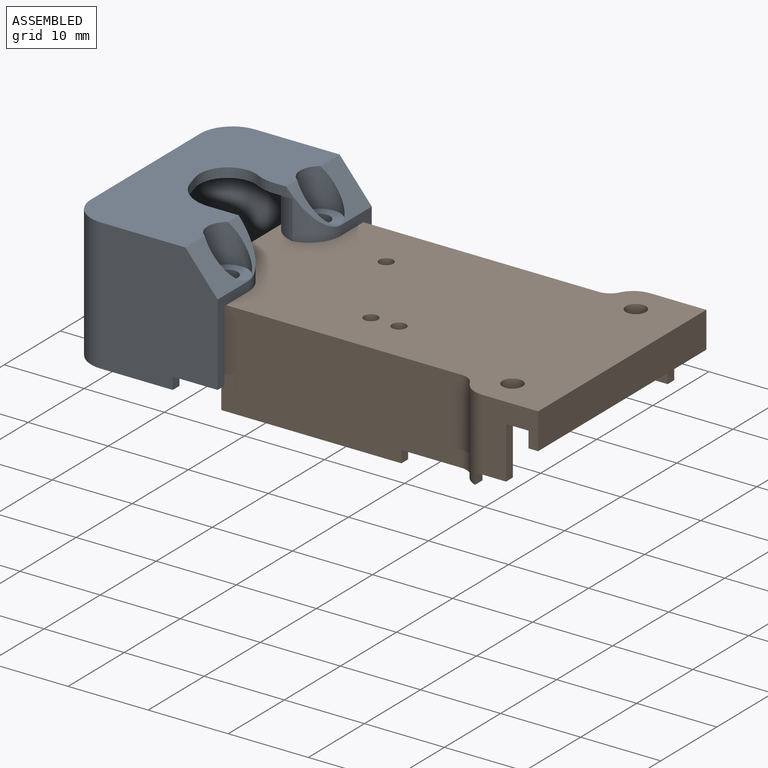
[diagram: assembled view]
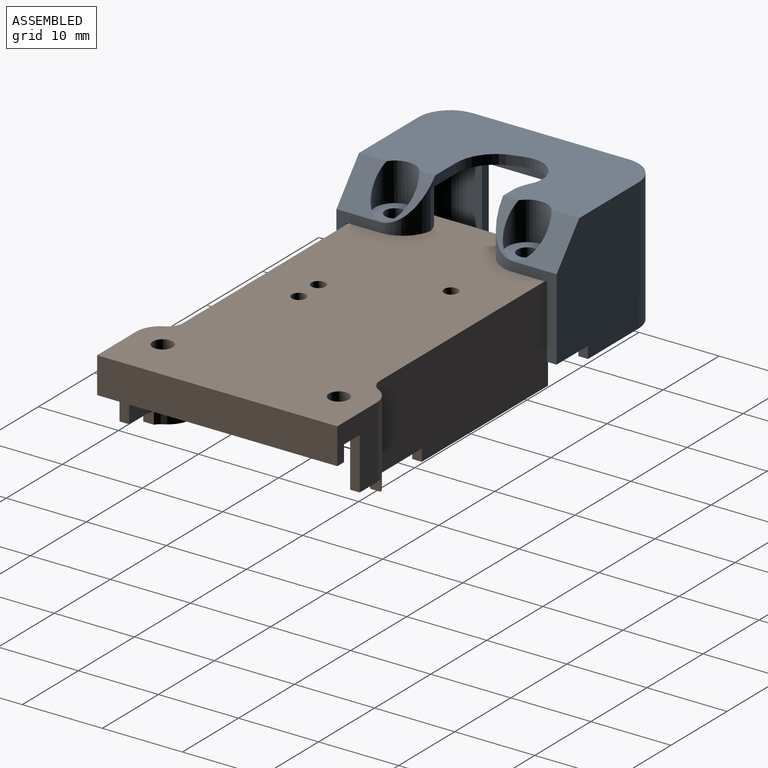
[diagram: assembled view, second angle]
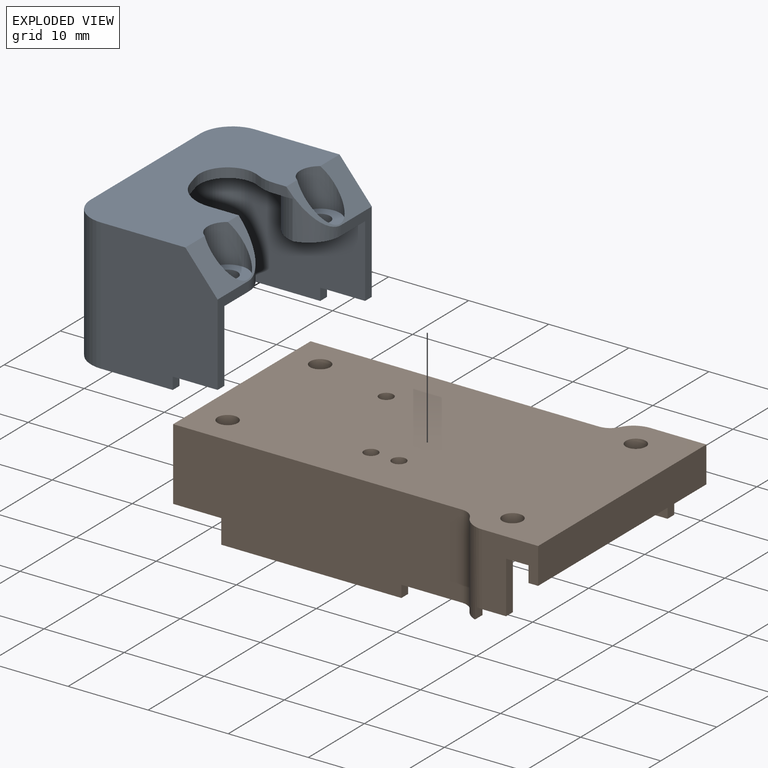
[diagram: exploded view]
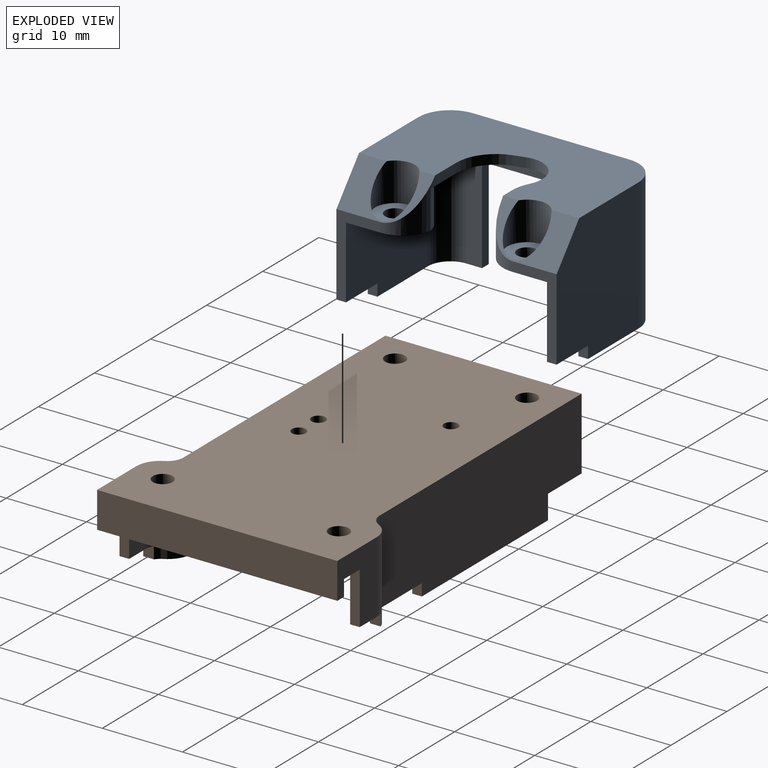
[diagram: exploded view, second angle]
ASSEMBLY  parts=2 mates=2
PART A: 45 faces, bbox 18.6x27.5x16.5 mm
  f0: plane 13x6mm, normal (0,0,1), area 19.6mm2, adj f2,f3,f14,f16,f18,f20,f25,f44
  f1: plane 13x11mm, normal (0,0,1), area 25.6mm2, adj f2,f3,f15,f17,f19,f21,f26,f41
  f2: plane 19.5x16.5mm, normal (-1,0,0), area 195.7mm2, adj f0,f1,f5,f16,f17,f24,f25,f26
  f3: plane 19.5x15.3mm, normal (1,0,0), area 172.3mm2, adj f0,f1,f10,f20,f21,f24,f25,f26
  f4: plane 10.2x5.5mm, normal (1,0,0), area 17.4mm2, adj f6,f14,f18,f27,f40,f43
  f5: plane 27.5x14.57mm, normal (0,0,-1), area 314.8mm2, adj f2,f8,f9,f12,f13,f14,f15,f16
  f6: plane 8.24x6.6mm, normal (0,0,1), area 43mm2, adj f4,f7,f18,f27,f28,f32
  f7: plane 4.8x4.3mm, normal (-1,0,0), area 20.6mm2, adj f6,f10,f18,f28
  f8: plane 3.78x1.2mm, normal (0,-1,0), area 4.5mm2, adj f5,f10,f27,f38,f40
  f9: plane 1.6x1.2mm, normal (0,1,0), area 1.9mm2, adj f5,f10,f29,f37,f39
  f10: plane 25.1x14.1mm, normal (0,0,1), area 223.5mm2, adj f3,f7,f8,f9,f12,f13,f18,f19
  f11: plane 10.2x5.5mm, normal (1,0,0), area 17.4mm2, adj f15,f19,f22,f29,f39,f42
  f12: plane 1.39x1.2mm, normal (0.97,-0.26,0), area 1.7mm2, adj f5,f10,f13,f38
  f13: cylinder r=3.5mm len=5.15mm, axis (0,0,-1), area 9.8mm2, adj f5,f10,f12,f37
  f14: plane 16.5x14.6mm, normal (0,1,0), area 222.8mm2, adj f0,f4,f5,f16,f40,f43,f44
  f15: plane 16.5x14.6mm, normal (0,-1,0), area 222.8mm2, adj f1,f5,f11,f17,f39,f41,f42
  f16: cylinder r=4mm len=16.5mm, axis (0,0,-1), area 103.7mm2, adj f0,f2,f5,f14
  f17: cylinder r=4mm len=16.5mm, axis (0,0,1), area 103.7mm2, adj f1,f2,f5,f15
  f18: plane 15.3x14.6mm, normal (0,-1,0), area 183.3mm2, adj f0,f4,f6,f7,f10,f20,f43,f44
  f19: plane 15.3x14.6mm, normal (0,1,0), area 183.3mm2, adj f1,f10,f11,f21,f22,f23,f41,f42
  f20: cylinder r=2.8mm len=15.3mm, axis (0,0,-1), area 67.3mm2, adj f0,f3,f10,f18
  f21: cylinder r=2.8mm len=15.3mm, axis (0,0,1), area 67.3mm2, adj f1,f3,f10,f19
  f22: plane 8.24x6.6mm, normal (0,0,1), area 43mm2, adj f11,f19,f23,f29,f30,f31
  f23: plane 4.8x4.3mm, normal (-1,0,0), area 20.6mm2, adj f10,f19,f22,f30
  f24: plane 10.5x1.2mm, normal (0,0,1), area 12.6mm2, adj f2,f3,f25,f26
  f25: plane 12x1.2mm, normal (0,-1,0), area 14.4mm2, adj f0,f2,f3,f24
  f26: plane 12x1.2mm, normal (0,1,0), area 14.4mm2, adj f1,f2,f3,f24
  f27: cylinder r=4mm len=5.97mm, axis (0,0,-1), area 15mm2, adj f4,f6,f8,f10,f28,f40
  f28: cylinder r=4mm len=4.8mm, axis (0,0,1), area 26.8mm2, adj f6,f7,f10,f27
  f29: cylinder r=4mm len=5.97mm, axis (0,0,1), area 15mm2, adj f9,f10,f11,f22,f30,f39
  f30: cylinder r=4mm len=4.8mm, axis (0,0,-1), area 26.8mm2, adj f10,f22,f23,f29
  f31: cylinder r=1.25mm len=2.5mm, axis (0,0,-1), area 9.4mm2, adj f22,f36
  f32: cylinder r=1.25mm len=2.5mm, axis (0,0,-1), area 9.4mm2, adj f6,f34
  f33: cylinder r=2.5mm len=5mm, axis (0,0,-1), area 44.6mm2, adj f5,f34,f40
  f34: plane 5x5mm, normal (0,0,-1), area 14.7mm2, adj f32,f33
  f35: cylinder r=2.5mm len=5mm, axis (0,0,-1), area 44.6mm2, adj f5,f36,f39
  f36: plane 5x5mm, normal (0,0,-1), area 14.7mm2, adj f31,f35
  f37: cylinder r=5mm len=2.35mm, axis (0,0,-1), area 2.9mm2, adj f5,f9,f10,f13
  f38: cylinder r=5mm len=4.83mm, axis (0,0,1), area 7.8mm2, adj f5,f8,f10,f12
  f39: plane 9.5x4.8mm, normal (0.77,0,-0.64), area 28.4mm2, adj f5,f9,f11,f15,f29,f35
  f40: plane 9.5x4.8mm, normal (0.77,0,-0.64), area 28.4mm2, adj f4,f5,f8,f14,f27,f33
  f41: plane 1.5x1.2mm, normal (1,0,0), area 1.8mm2, adj f1,f15,f19,f42
  f42: plane 5.6x1.2mm, normal (0,0,1), area 6.7mm2, adj f11,f15,f19,f41
  f43: plane 5.6x1.2mm, normal (0,0,1), area 6.7mm2, adj f4,f14,f18,f44
  f44: plane 1.5x1.2mm, normal (1,0,0), area 1.8mm2, adj f0,f14,f18,f43
PART B: 52 faces, bbox 47.5x30x12 mm
  f0: plane 30x4.5mm, normal (1,0,0), area 135mm2, adj f6,f7,f10,f27
  f1: plane 36.02x12mm, normal (0,1,0), area 403mm2, adj f3,f8,f10,f13,f38,f39,f42,f43
  f2: plane 36.02x12mm, normal (0,-1,0), area 403mm2, adj f8,f9,f10,f14,f32,f37,f40,f41
  f3: plane 22.5x1.2mm, normal (0,0,1), area 27mm2, adj f1,f4,f39,f43
  f4: plane 36.02x10.8mm, normal (0,-1,0), area 359.8mm2, adj f3,f8,f18,f21,f38,f39,f42,f43
  f5: plane 36.02x10.8mm, normal (0,1,0), area 359.8mm2, adj f8,f9,f18,f22,f32,f37,f40,f41
  f6: plane 9x7.01mm, normal (0,-1,0), area 39.5mm2, adj f0,f10,f11,f16,f27,f28,f30,f35
  f7: plane 9x7.01mm, normal (0,1,0), area 39.5mm2, adj f0,f10,f12,f16,f27,f29,f31,f36
  f8: plane 24.5x9mm, normal (-1,0,0), area 48.1mm2, adj f1,f2,f4,f5,f10,f18,f41,f42
  f9: plane 22.5x1.2mm, normal (0,0,1), area 27mm2, adj f2,f5,f32,f40
  f10: plane 47.5x30mm, normal (0,0,-1), area 1188.8mm2, adj f0,f1,f2,f6,f7,f8,f11,f12
  f11: cylinder r=3mm len=10.5mm, axis (0,0,1), area 33.3mm2, adj f6,f10,f14,f33,f35,f37
  f12: cylinder r=3mm len=10.5mm, axis (0,0,-1), area 33.3mm2, adj f7,f10,f13,f34,f36,f38
  f13: cylinder r=2mm len=10.5mm, axis (0,0,-1), area 23.2mm2, adj f1,f10,f12,f38
  f14: cylinder r=2mm len=10.5mm, axis (0,0,1), area 23.2mm2, adj f2,f10,f11,f37
  f15: plane 7.8x5.81mm, normal (0,1,0), area 27.1mm2, adj f16,f18,f19,f28,f30,f35
  f16: plane 30x3.3mm, normal (-1,0,0), area 95.9mm2, adj f6,f7,f15,f17,f18,f27,f30,f31
  f17: plane 7.8x5.81mm, normal (0,-1,0), area 27.1mm2, adj f16,f18,f20,f29,f31,f36
  f18: plane 46.3x27.6mm, normal (0,0,1), area 1006.8mm2, adj f4,f5,f8,f15,f16,f17,f19,f20
  f19: cylinder r=1.8mm len=9.3mm, axis (0,0,1), area 16.9mm2, adj f15,f18,f22,f33,f35,f37
  f20: cylinder r=1.8mm len=9.3mm, axis (0,0,-1), area 16.9mm2, adj f17,f18,f21,f34,f36,f38
  f21: cylinder r=3.2mm len=9.3mm, axis (0,0,-1), area 32.9mm2, adj f4,f18,f20,f38
  f22: cylinder r=3.2mm len=9.3mm, axis (0,0,1), area 32.9mm2, adj f5,f18,f19,f37
  f23: cylinder r=1.25mm len=2.5mm, axis (0,0,-1), area 9.4mm2, adj f10,f18
  f24: cylinder r=1.25mm len=2.5mm, axis (0,0,-1), area 9.4mm2, adj f10,f18
  f25: cylinder r=1.25mm len=2.5mm, axis (0,0,-1), area 9.4mm2, adj f10,f18
  f26: cylinder r=1.25mm len=2.5mm, axis (0,0,-1), area 9.4mm2, adj f10,f18
  f27: plane 30x1.2mm, normal (0,0,1), area 36mm2, adj f0,f6,f7,f16
  f28: plane 6.5x1.2mm, normal (1,0,0), area 7.8mm2, adj f6,f15,f30,f35
  f29: plane 6.5x1.2mm, normal (1,0,0), area 7.8mm2, adj f7,f17,f31,f36
  f30: plane 2.8x1.2mm, normal (0,0,1), area 3.4mm2, adj f6,f15,f16,f28
  f31: plane 2.8x1.2mm, normal (0,0,1), area 3.4mm2, adj f7,f16,f17,f29
  f32: plane 1.5x1.2mm, normal (1,0,0), area 1.8mm2, adj f2,f5,f9,f37
  f33: plane 1.5x1.33mm, normal (1,0,0), area 2mm2, adj f11,f19,f35,f37
  f34: plane 1.5x1.33mm, normal (1,0,0), area 2mm2, adj f12,f20,f36,f38
  f35: plane 4x1.5mm, normal (0,0,1), area 4.8mm2, adj f6,f11,f15,f19,f28,f33
  f36: plane 4x1.5mm, normal (0,0,1), area 4.8mm2, adj f7,f12,f17,f20,f29,f34
  f37: plane 11x3.78mm, normal (0,0,1), area 14.4mm2, adj f2,f5,f11,f14,f19,f22,f32,f33
  f38: plane 11x3.78mm, normal (0,0,1), area 14.4mm2, adj f1,f4,f12,f13,f20,f21,f34,f39
  f39: plane 1.5x1.2mm, normal (1,0,0), area 1.8mm2, adj f1,f3,f4,f38
  f40: plane 3x1.2mm, normal (-1,0,0), area 3.6mm2, adj f2,f5,f9,f41
  f41: plane 6x1.2mm, normal (0,0,1), area 7.2mm2, adj f2,f5,f8,f40
  f42: plane 6x1.2mm, normal (0,0,1), area 7.2mm2, adj f1,f4,f8,f43
  f43: plane 3x1.2mm, normal (-1,0,0), area 3.6mm2, adj f1,f3,f4,f42
  f44: cylinder r=0.88mm len=5.5mm, axis (0,0,-1), area 30.2mm2, adj f10,f48
  f45: cylinder r=0.88mm len=5.5mm, axis (0,0,-1), area 30.2mm2, adj f10,f48
  f46: cylinder r=0.88mm len=5.5mm, axis (0,0,-1), area 30.2mm2, adj f10,f50
  f47: cylinder r=2.08mm len=4.3mm, axis (0,0,1), area 45.9mm2, adj f18,f48,f49
  f48: plane 7.65x4.15mm, normal (0,0,1), area 21.3mm2, adj f44,f45,f47,f49
  f49: cylinder r=2.08mm len=4.3mm, axis (0,0,1), area 45.9mm2, adj f18,f47,f48
  f50: plane 4.15x4.15mm, normal (0,0,1), area 11.1mm2, adj f46,f51
  f51: cylinder r=2.08mm len=4.3mm, axis (0,0,1), area 56.1mm2, adj f18,f50
PLACE A rot(axis=(1,0,0),180deg) t=(-27.56,7.5,14.14)mm
PLACE B rot(axis=(1,0,0),180deg) t=(-27.56,7.5,11.14)mm
MATE cylindrical A.f32 <-> B.f23  axis (0,0,1) through (-27.56,-0.75,12.34)mm
MATE planar A.f6 <-> B.f10  axis (0,0,-1) through (-28.34,-1.43,11.14)mm
